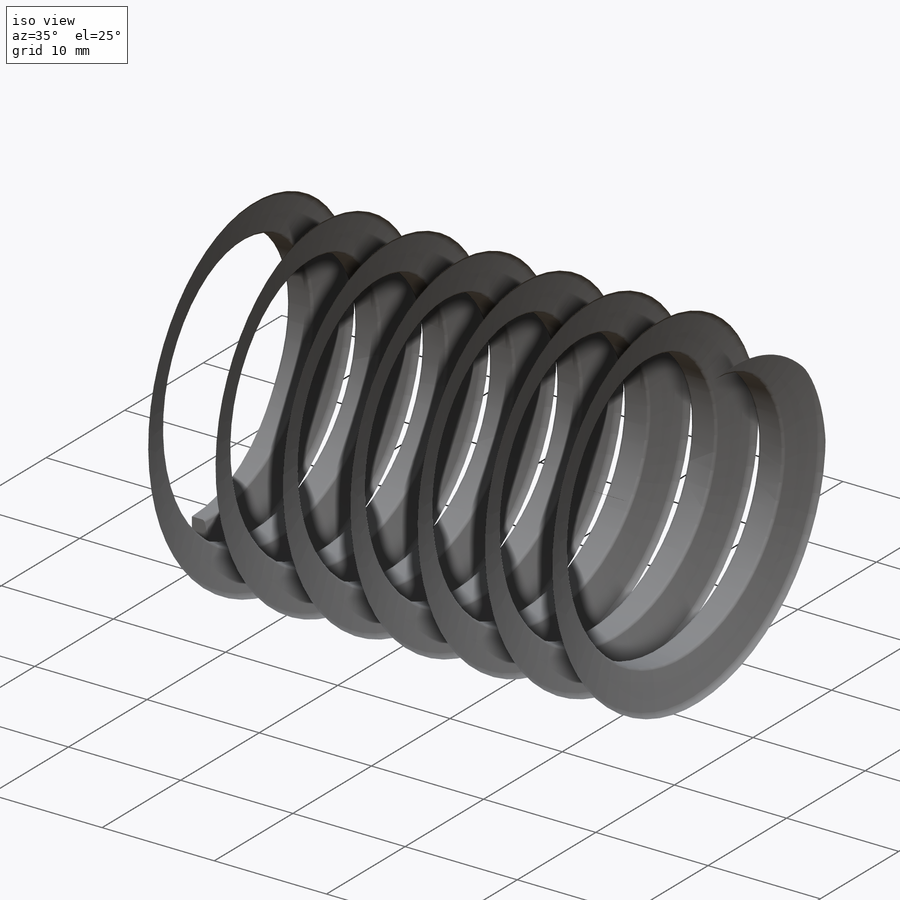
[diagram: iso view]
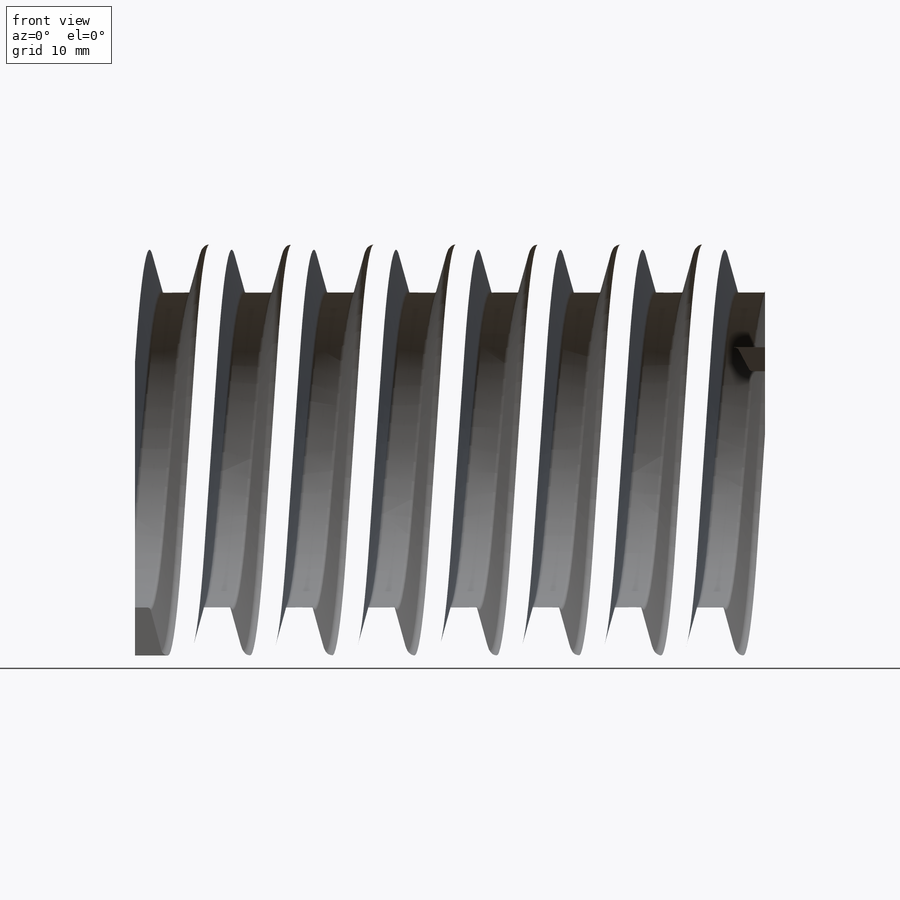
[diagram: front view]
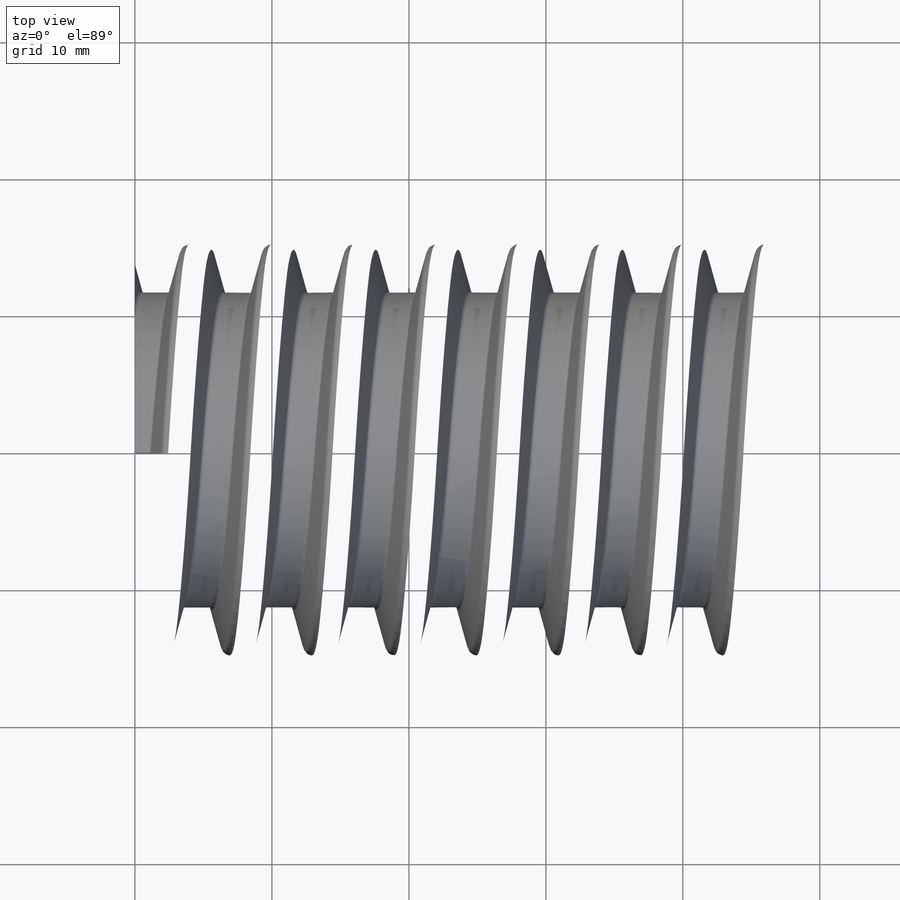
[diagram: top view]
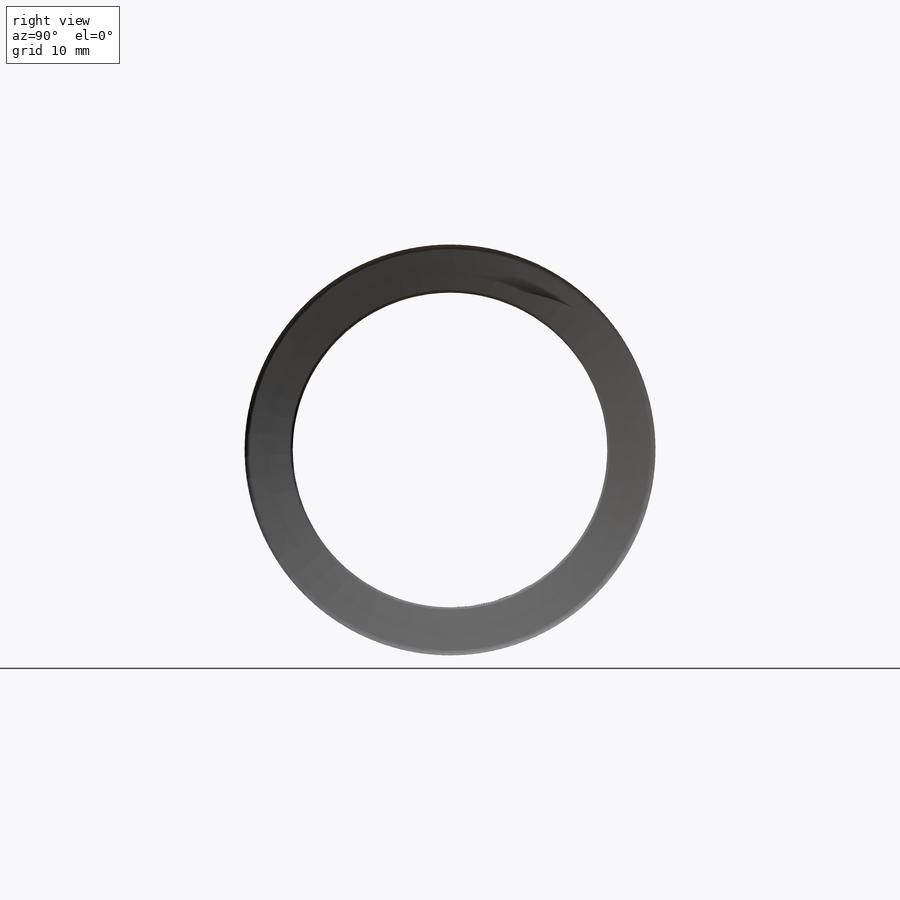
[diagram: right view]
SOLIDWORKS PART (.sldprt)
format: sldprt  version: not decoded by parser v0  size: 1,010,688 bytes
history: native  units: mm
features: sketch x7, plane x3, cut_extrude x2, material x1, revolve x1, chamfer x1, hole x1, helix x1, sweep x1 + 4 further entries (+8 scaffold rows collapsed)
feature tree (30):
  scaffold x8  (default folders/planes/origin — collapsed)
  material  "БрАЖ9-4 ГОСТ 18175-78"
  plane  "Спереди"
  plane  "Сверху"
  plane  "Слева"
  "Начало координат"
  "PTricksFreeParameters"
  "PTricksEqu"
  "PTricksFreeParameters"
  sketch  "Эскиз1"  dims[D1=38.0mm D2=62.0mm D3=14.0mm D4=46.0mm]
  revolve  "Повернуть1"  Angle=360deg
  chamfer  "Фаска1"  Distance=1mm Angle=45deg
  hole  "Отверстие с зазором M61"  [1 undecoded]
  sketch  "Эскиз3"  dims[D1=50.0mm]
  sketch  "Эскиз2"  dims[hole-wizard template sketch: 59 standard entries collapsed; hole parameters kept: c18.Диаметр сквозного отверстия=6.5mm c18.Глубина сквозного отверстия=14.0mm]
  sketch  "Эскиз4"  dims[c1.D1=0.25mm c1.D2=0.5mm c1.D3=3.5mm c1.D4=1.5mm c1.D5=3.0mm c1.D6=~3.012193mm c2.D6=30.0deg c2.D7=30.0mm]
  sketch  "Эскиз5"
  helix  "Спираль1"  Pitch=46mm
  sketch  "Эскиз6"
  cut_extrude  "Вытянуть1"  [1 undecoded]
  sweep  "По траектории1"
  sketch  "Эскиз7"
  cut_extrude  "Вытянуть2"  [1 undecoded]
decode coverage: 7 of 14 modeling features carry decoded parameters; 4 rows unclassified (native names shown)
note: ~ marks probable driven/reference dimensions
note: 3 parameter values undecoded
summary: no parameter record found for 3 features
note: suppression state not decoded; provenance and decode notes live in map.json
